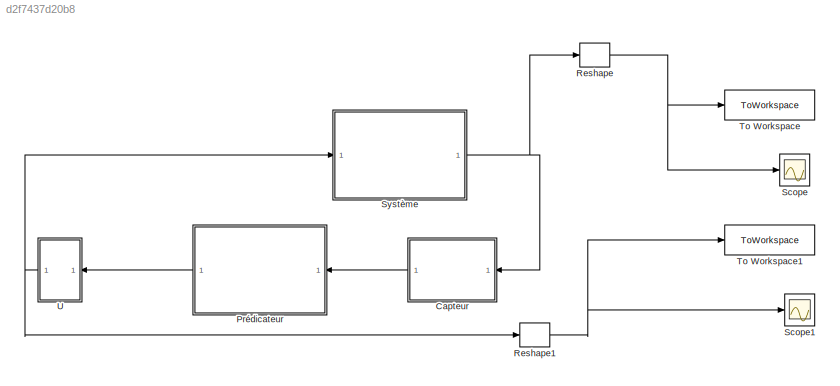
MODEL slx_d2f7437d20b8
KIND model
CONFIG AbsTol = auto
CONFIG EnableMultiTasking = off
CONFIG FixedStep = auto
CONFIG MaxStep = auto
CONFIG MinStep = auto
CONFIG RelTol = 1e-3
CONFIG SampleTimeConstraint = Unconstrained
CONFIG SolverName = VariableStepAuto
CONFIG StartTime = 0.0
CONFIG StopTime = 10.0
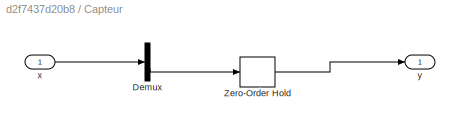
BLOCK [SubSystem] Capteur
  Ports = [1, 1]
  RequestExecContextInheritance = off
BLOCK [Demux] Capteur/Demux
  Outputs = 2
  Ports = [1, 2]
BLOCK [ZeroOrderHold] Capteur/Zero-Order Hold
  SampleTime = -1
BLOCK [Inport] Capteur/x
BLOCK [Outport] Capteur/y
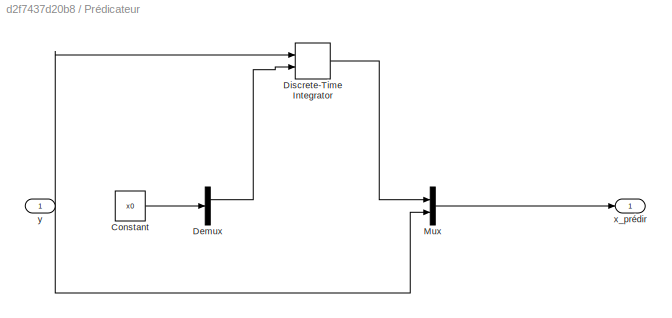
BLOCK [SubSystem] Prédicateur
  Ports = [1, 1]
  RequestExecContextInheritance = off
BLOCK [Constant] Prédicateur/Constant
  Value = x0
BLOCK [Demux] Prédicateur/Demux
  Outputs = 2
  Ports = [1, 2]
BLOCK [DiscreteIntegrator] Prédicateur/Discrete-Time Integrator
  ICPrevOutput = DiscIntNeverNeededParam
  ICPrevScaledInput = DiscIntNeverNeededParam
  InitialConditionSetting = Auto
  InitialConditionSource = external
  Ports = [2, 1]
  SampleTime = delta_t
BLOCK [Mux] Prédicateur/Mux
  DisplayOption = bar
  Inputs = 2
  Ports = [2, 1]
BLOCK [Outport] Prédicateur/x_prédir
BLOCK [Inport] Prédicateur/y
BLOCK [Reshape] Reshape
  Ports = [1, 1]
BLOCK [Reshape] Reshape1
  Ports = [1, 1]
BLOCK [Scope] Scope
  Floating = off
  NumInputPorts = 1
  Ports = [1]
  ScopeSpecificationString = Simulink.scopes.TimeScopeBlockCfg('CurrentConfiguration', extmgr.ConfigurationSet(extmgr.Configuration('Core','General UI',true),extmgr.Configuration('Core','Source UI',true),extmgr.Configuration('Sources','WiredSimulink',true),extmgr.Configuration('Visuals','Time Domain',true,'SerializedDisplays',{struct('MinYLimReal','-0.20081','MaxYLimReal','0.19684','YLabelReal','','MinYLimMag','0.00000','MaxY...<+1418ch>
BLOCK [Scope] Scope1
  Floating = off
  NumInputPorts = 1
  Ports = [1]
  ScopeSpecificationString = Simulink.scopes.TimeScopeBlockCfg('CurrentConfiguration', extmgr.ConfigurationSet(extmgr.Configuration('Core','General UI',true),extmgr.Configuration('Core','Source UI',true),extmgr.Configuration('Sources','WiredSimulink',true,'DataLoggingVariableName','ScopeData1'),extmgr.Configuration('Visuals','Time Domain',true,'SerializedDisplays',{struct('MinYLimReal','-3.13823','MaxYLimReal','5.58468','YLab...<+1444ch>
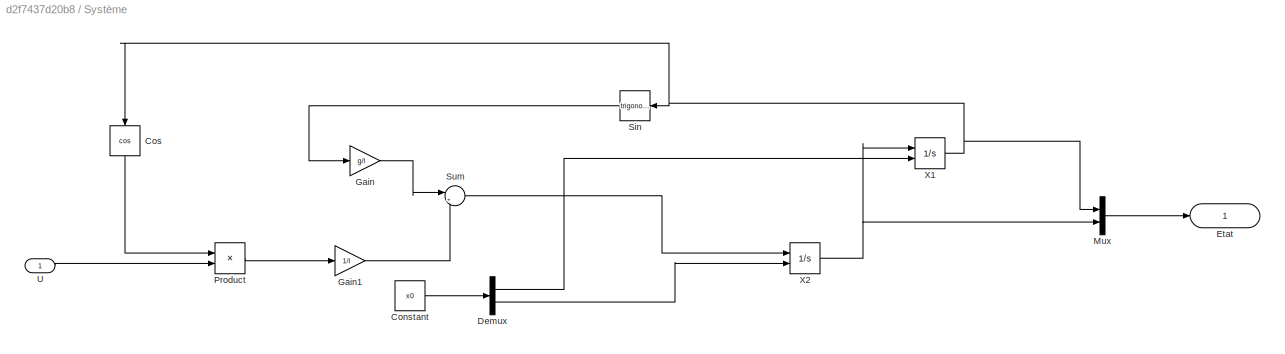
BLOCK [SubSystem] Système
  Ports = [1, 1]
  RequestExecContextInheritance = off
BLOCK [Constant] Système/Constant
  Value = x0
  VectorParams1D = off
BLOCK [Trigonometry] Système/Cos
  NameLocation = left
  Operator = cos
  Ports = [1, 1]
BLOCK [Demux] Système/Demux
  Outputs = 2
  Ports = [1, 2]
BLOCK [Outport] Système/Etat
BLOCK [Gain] Système/Gain
  Gain = g/l
BLOCK [Gain] Système/Gain1
  Gain = 1/l
BLOCK [Mux] Système/Mux
  DisplayOption = bar
  Inputs = 2
  Ports = [2, 1]
BLOCK [Product] Système/Product
  Ports = [2, 1]
BLOCK [Trigonometry] Système/Sin
  Ports = [1, 1]
BLOCK [Sum] Système/Sum
  Inputs = |+-
  Ports = [2, 1]
BLOCK [Inport] Système/U
BLOCK [Integrator] Système/X1
  InitialConditionSource = external
  Ports = [2, 1]
BLOCK [Integrator] Système/X2
  InitialConditionSource = external
  Ports = [2, 1]
BLOCK [ToWorkspace] To Workspace
  FixptAsFi = on
  MaxDataPoints = inf
  Ports = [1]
  SampleTime = -1
  SaveFormat = Timeseries
  VariableName = X
BLOCK [ToWorkspace] To Workspace1
  FixptAsFi = on
  MaxDataPoints = inf
  Ports = [1]
  SampleTime = -1
  SaveFormat = Timeseries
  VariableName = U
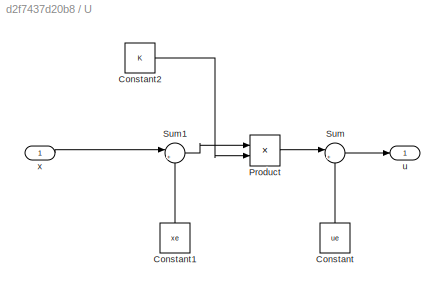
BLOCK [SubSystem] U
  Ports = [1, 1]
  RequestExecContextInheritance = off
BLOCK [Constant] U/Constant
  NameLocation = right
  Value = ue
BLOCK [Constant] U/Constant1
  NameLocation = right
  Value = xe
BLOCK [Constant] U/Constant2
  NameLocation = top
  Value = K
BLOCK [Product] U/Product
  Multiplication = Matrix(*)
  Ports = [2, 1]
BLOCK [Sum] U/Sum
  Inputs = |++
  Ports = [2, 1]
BLOCK [Sum] U/Sum1
  Inputs = |+-
  Ports = [2, 1]
BLOCK [Outport] U/u
BLOCK [Inport] U/x
LINE Capteur/Demux:2 -> Capteur/Zero-Order Hold:1
LINE Capteur/Zero-Order Hold:1 -> Capteur/y:1
LINE Capteur/x:1 -> Capteur/Demux:1
LINE Capteur:1 -> Prédicateur:1
LINE Prédicateur/Constant:1 -> Prédicateur/Demux:1
LINE Prédicateur/Demux:1 -> Prédicateur/Discrete-Time Integrator:2
LINE Prédicateur/Discrete-Time Integrator:1 -> Prédicateur/Mux:1
LINE Prédicateur/Mux:1 -> Prédicateur/x_prédir:1
NET Prédicateur/y:1 -> Prédicateur/Discrete-Time Integrator:1, Prédicateur/Mux:2
LINE Prédicateur:1 -> U:1
NET Reshape1:1 -> Scope1:1, To Workspace1:1
NET Reshape:1 -> Scope:1, To Workspace:1
LINE Système/Constant:1 -> Système/Demux:1
LINE Système/Cos:1 -> Système/Product:1
LINE Système/Demux:1 -> Système/X1:2
LINE Système/Demux:2 -> Système/X2:2
LINE Système/Gain1:1 -> Système/Sum:2
LINE Système/Gain:1 -> Système/Sum:1
LINE Système/Mux:1 -> Système/Etat:1
LINE Système/Product:1 -> Système/Gain1:1
LINE Système/Sin:1 -> Système/Gain:1
LINE Système/Sum:1 -> Système/X2:1
LINE Système/U:1 -> Système/Product:2
NET Système/X1:1 -> Système/Cos:1, Système/Mux:1, Système/Sin:1
NET Système/X2:1 -> Système/Mux:2, Système/X1:1
NET Système:1 -> Capteur:1, Reshape:1
LINE U/Constant1:1 -> U/Sum1:2
LINE U/Constant2:1 -> U/Product:2
LINE U/Constant:1 -> U/Sum:2
LINE U/Product:1 -> U/Sum:1
LINE U/Sum1:1 -> U/Product:1
LINE U/Sum:1 -> U/u:1
LINE U/x:1 -> U/Sum1:1
NET U:1 -> Reshape1:1, Système:1
note: NET lines group one-source signal fan-out (src -> all destinations, sorted); 1:1 wires keep LINE
